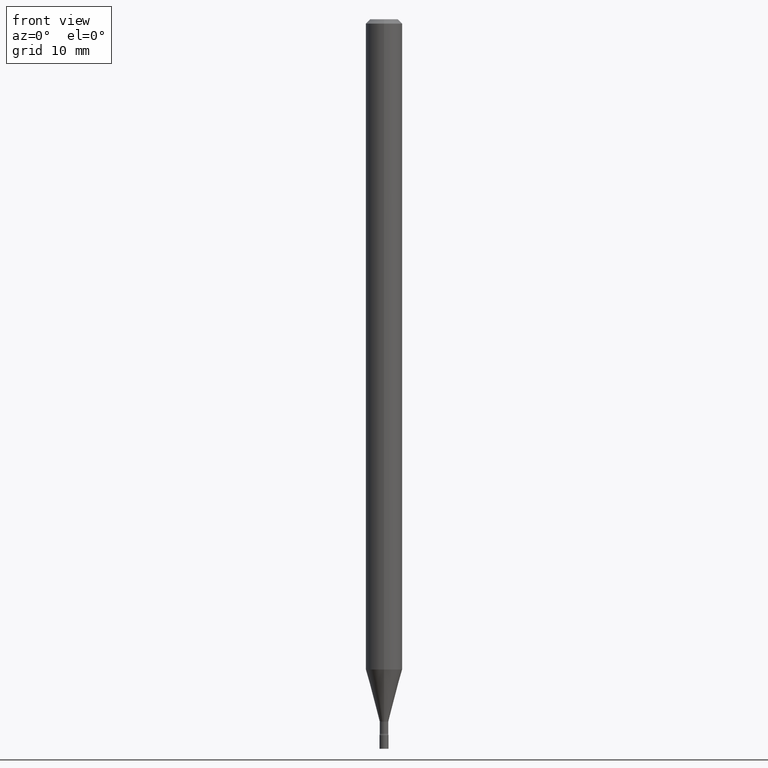
[diagram: clean part render]
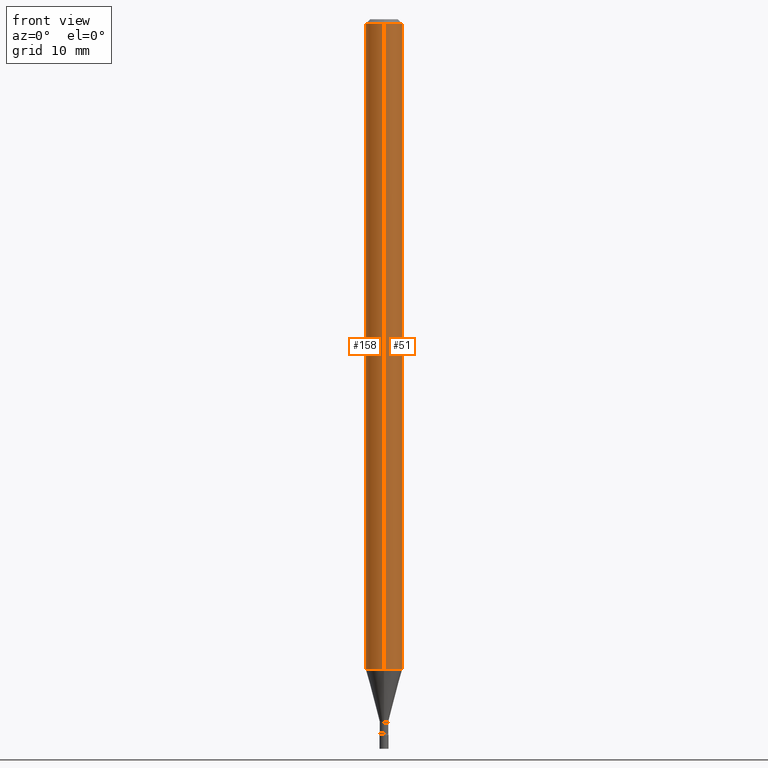
[diagram: same view with one multi-face feature highlighted, each face labeled with its STEP entity id]
A machine part, front view. The highlighted faces form ONE feature: a constant-radius fillet chain: 2 tangent blend faces with common blend radius 1.5875 mm. The faces share edges in the B-rep.
Their STEP definitions:
[1] entity #158 (Cylinder):
#2 = CARTESIAN_POINT ( 'NONE',  ( 4.440892098500625669E-16, 0.06250000000000000000, -2.182170452178154301E-16 ) ) ;
#8 = AXIS2_PLACEMENT_3D ( 'NONE', #186, #25, #350 ) ;
#23 = VERTEX_POINT ( 'NONE', #157 ) ;
#25 = DIRECTION ( 'NONE',  ( -2.445474822257542446E-29, 3.491472723485046881E-15, 1.000000000000000000 ) ) ;
#28 = VERTEX_POINT ( 'NONE', #408 ) ;
#32 = EDGE_CURVE ( 'NONE', #325, #179, #160, .T. ) ;
#69 = CARTESIAN_POINT ( 'NONE',  ( -4.364351673553916201E-16, -0.06250000000000000000, 2.182170452178154301E-16 ) ) ;
#106 = CARTESIAN_POINT ( 'NONE',  ( -4.364351673553912750E-16, -0.06250000000000005551, -0.01499999999999981209 ) ) ;
#114 = CARTESIAN_POINT ( 'NONE',  ( 4.440892098501173434E-16, 0.06249999999999995143, -0.01500000000000024751 ) ) ;
#128 = CARTESIAN_POINT ( 'NONE',  ( 5.448635687293979942E-29, -7.779169390438593115E-15, -2.228048163777072599 ) ) ;
#140 = VECTOR ( 'NONE', #164, 39.37007874015748143 ) ;
#153 = DIRECTION ( 'NONE',  ( -2.445474822257542446E-29, 3.491472723485046881E-15, 1.000000000000000000 ) ) ;
#157 = CARTESIAN_POINT ( 'NONE',  ( 4.440892098501168504E-16, 0.06249999999999221456, -2.228048163777073043 ) ) ;
#158 = ADVANCED_FACE ( 'NONE', ( #461 ), #225, .T. ) ;
#160 = CIRCLE ( 'NONE', #184, 0.06250000000000000000 ) ;
#164 = DIRECTION ( 'NONE',  ( -2.445474822257542166E-29, 3.491472723485046487E-15, 1.000000000000000000 ) ) ;
#179 = VERTEX_POINT ( 'NONE', #106 ) ;
#184 = AXIS2_PLACEMENT_3D ( 'NONE', #200, #153, #516 ) ;
#186 = CARTESIAN_POINT ( 'NONE',  ( 0.000000000000000000, 0.000000000000000000, 0.000000000000000000 ) ) ;
#200 = CARTESIAN_POINT ( 'NONE',  ( 3.668212233386320885E-31, -5.237209085227580700E-17, -0.01500000000000003067 ) ) ;
#207 = LINE ( 'NONE', #2, #140 ) ;
#225 = CYLINDRICAL_SURFACE ( 'NONE', #8, 0.06250000000000000000 ) ;
#250 = CIRCLE ( 'NONE', #320, 0.06250000000000000000 ) ;
#266 = ORIENTED_EDGE ( 'NONE', *, *, #278, .T. ) ;
#278 = EDGE_CURVE ( 'NONE', #28, #179, #509, .T. ) ;
#284 = VECTOR ( 'NONE', #399, 39.37007874015748143 ) ;
#294 = ORIENTED_EDGE ( 'NONE', *, *, #32, .F. ) ;
#307 = EDGE_LOOP ( 'NONE', ( #397, #454, #266, #294 ) ) ;
#320 = AXIS2_PLACEMENT_3D ( 'NONE', #128, #452, #322 ) ;
#322 = DIRECTION ( 'NONE',  ( -6.982962677686265922E-15, -1.000000000000000000, 4.370956789862821150E-15 ) ) ;
#325 = VERTEX_POINT ( 'NONE', #114 ) ;
#350 = DIRECTION ( 'NONE',  ( -6.982962677686265922E-15, -1.000000000000000000, 3.491472723485046881E-15 ) ) ;
#397 = ORIENTED_EDGE ( 'NONE', *, *, #449, .F. ) ;
#399 = DIRECTION ( 'NONE',  ( -2.445474822257542166E-29, 3.491472723485046487E-15, 1.000000000000000000 ) ) ;
#408 = CARTESIAN_POINT ( 'NONE',  ( -4.364351673553372873E-16, -0.06250000000000779932, -2.228048163777072599 ) ) ;
#449 = EDGE_CURVE ( 'NONE', #23, #325, #207, .T. ) ;
#452 = DIRECTION ( 'NONE',  ( -2.445474822257542446E-29, 3.491472723485046881E-15, 1.000000000000000000 ) ) ;
#454 = ORIENTED_EDGE ( 'NONE', *, *, #519, .T. ) ;
#461 = FACE_OUTER_BOUND ( 'NONE', #307, .T. ) ;
#509 = LINE ( 'NONE', #69, #284 ) ;
#516 = DIRECTION ( 'NONE',  ( -6.982962677686265922E-15, -1.000000000000000000, 3.483106191921935554E-15 ) ) ;
#519 = EDGE_CURVE ( 'NONE', #23, #28, #250, .T. ) ;
[2] entity #51 (Cylinder):
#2 = CARTESIAN_POINT ( 'NONE',  ( 4.440892098500625669E-16, 0.06250000000000000000, -2.182170452178154301E-16 ) ) ;
#4 = DIRECTION ( 'NONE',  ( -2.445474822257542446E-29, 3.491472723485046881E-15, 1.000000000000000000 ) ) ;
#23 = VERTEX_POINT ( 'NONE', #157 ) ;
#28 = VERTEX_POINT ( 'NONE', #408 ) ;
#33 = ORIENTED_EDGE ( 'NONE', *, *, #449, .T. ) ;
#39 = DIRECTION ( 'NONE',  ( -6.982962677686265922E-15, -1.000000000000000000, 3.491472723485046881E-15 ) ) ;
#40 = CARTESIAN_POINT ( 'NONE',  ( 3.668212233386320885E-31, -5.237209085227580700E-17, -0.01500000000000003067 ) ) ;
#51 = ADVANCED_FACE ( 'NONE', ( #120 ), #317, .T. ) ;
#69 = CARTESIAN_POINT ( 'NONE',  ( -4.364351673553916201E-16, -0.06250000000000000000, 2.182170452178154301E-16 ) ) ;
#79 = AXIS2_PLACEMENT_3D ( 'NONE', #443, #236, #39 ) ;
#97 = EDGE_CURVE ( 'NONE', #28, #23, #269, .T. ) ;
#106 = CARTESIAN_POINT ( 'NONE',  ( -4.364351673553912750E-16, -0.06250000000000005551, -0.01499999999999981209 ) ) ;
#114 = CARTESIAN_POINT ( 'NONE',  ( 4.440892098501173434E-16, 0.06249999999999995143, -0.01500000000000024751 ) ) ;
#120 = FACE_OUTER_BOUND ( 'NONE', #348, .T. ) ;
#140 = VECTOR ( 'NONE', #164, 39.37007874015748143 ) ;
#157 = CARTESIAN_POINT ( 'NONE',  ( 4.440892098501168504E-16, 0.06249999999999221456, -2.228048163777073043 ) ) ;
#164 = DIRECTION ( 'NONE',  ( -2.445474822257542166E-29, 3.491472723485046487E-15, 1.000000000000000000 ) ) ;
#179 = VERTEX_POINT ( 'NONE', #106 ) ;
#185 = AXIS2_PLACEMENT_3D ( 'NONE', #40, #403, #193 ) ;
#193 = DIRECTION ( 'NONE',  ( -6.982962677686265922E-15, -1.000000000000000000, 3.483106191921935554E-15 ) ) ;
#207 = LINE ( 'NONE', #2, #140 ) ;
#233 = CARTESIAN_POINT ( 'NONE',  ( 5.448635687293979942E-29, -7.779169390438593115E-15, -2.228048163777072599 ) ) ;
#236 = DIRECTION ( 'NONE',  ( -2.445474822257542446E-29, 3.491472723485046881E-15, 1.000000000000000000 ) ) ;
#269 = CIRCLE ( 'NONE', #324, 0.06250000000000000000 ) ;
#278 = EDGE_CURVE ( 'NONE', #28, #179, #509, .T. ) ;
#284 = VECTOR ( 'NONE', #399, 39.37007874015748143 ) ;
#286 = DIRECTION ( 'NONE',  ( -6.982962677686265922E-15, -1.000000000000000000, 4.370956789862821150E-15 ) ) ;
#317 = CYLINDRICAL_SURFACE ( 'NONE', #79, 0.06250000000000000000 ) ;
#324 = AXIS2_PLACEMENT_3D ( 'NONE', #233, #4, #286 ) ;
#325 = VERTEX_POINT ( 'NONE', #114 ) ;
#337 = EDGE_CURVE ( 'NONE', #179, #325, #347, .T. ) ;
#347 = CIRCLE ( 'NONE', #185, 0.06250000000000000000 ) ;
#348 = EDGE_LOOP ( 'NONE', ( #388, #33, #476, #513 ) ) ;
#388 = ORIENTED_EDGE ( 'NONE', *, *, #97, .T. ) ;
#399 = DIRECTION ( 'NONE',  ( -2.445474822257542166E-29, 3.491472723485046487E-15, 1.000000000000000000 ) ) ;
#403 = DIRECTION ( 'NONE',  ( -2.445474822257542446E-29, 3.491472723485046881E-15, 1.000000000000000000 ) ) ;
#408 = CARTESIAN_POINT ( 'NONE',  ( -4.364351673553372873E-16, -0.06250000000000779932, -2.228048163777072599 ) ) ;
#443 = CARTESIAN_POINT ( 'NONE',  ( 0.000000000000000000, 0.000000000000000000, 0.000000000000000000 ) ) ;
#449 = EDGE_CURVE ( 'NONE', #23, #325, #207, .T. ) ;
#476 = ORIENTED_EDGE ( 'NONE', *, *, #337, .F. ) ;
#509 = LINE ( 'NONE', #69, #284 ) ;
#513 = ORIENTED_EDGE ( 'NONE', *, *, #278, .F. ) ;